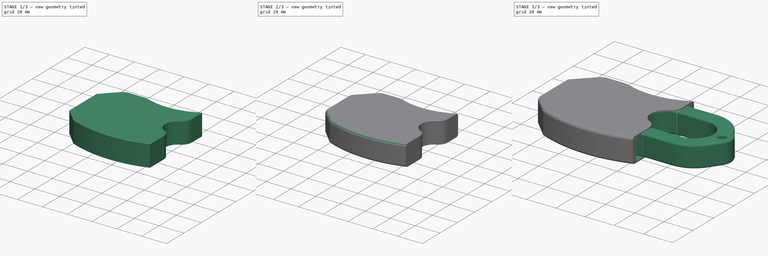
[diagram: build sequence overview — one tinted view per stage of 3, left to right]
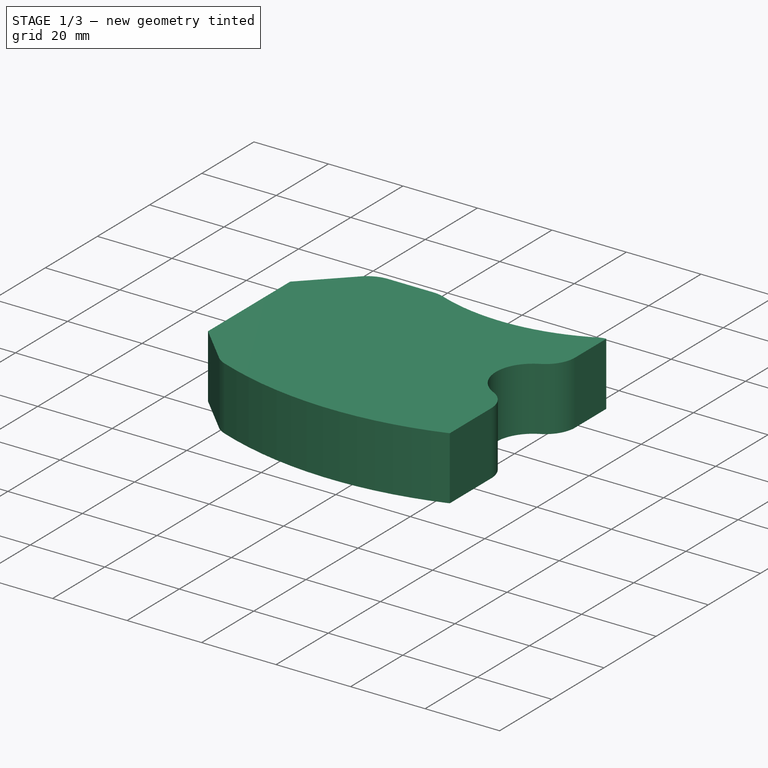
[diagram: stage 1 of 3 — iso view after this stage's code; geometry added in this stage tinted green]
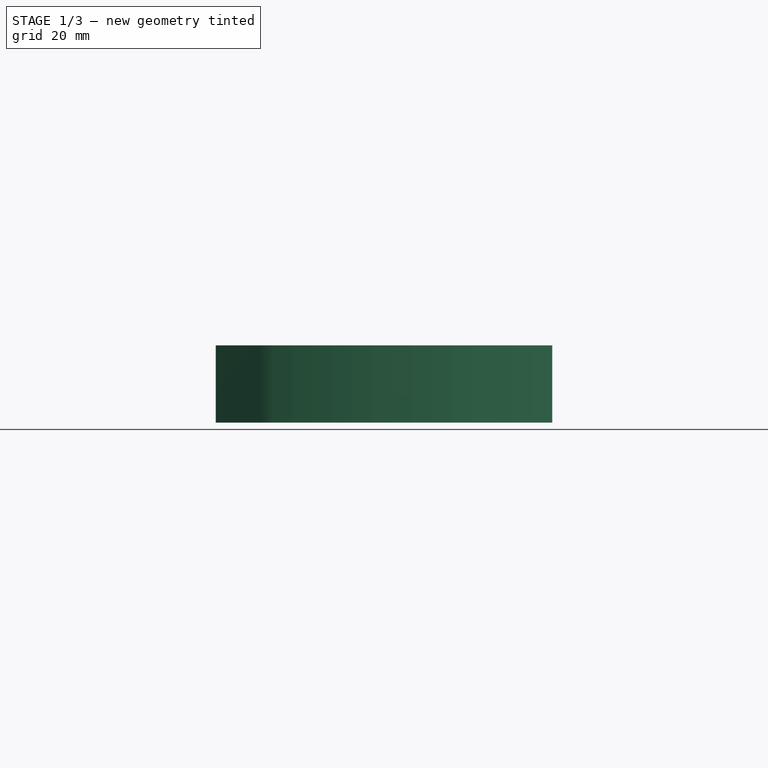
[diagram: stage 1 of 3 — front view after this stage's code; geometry added in this stage tinted green]
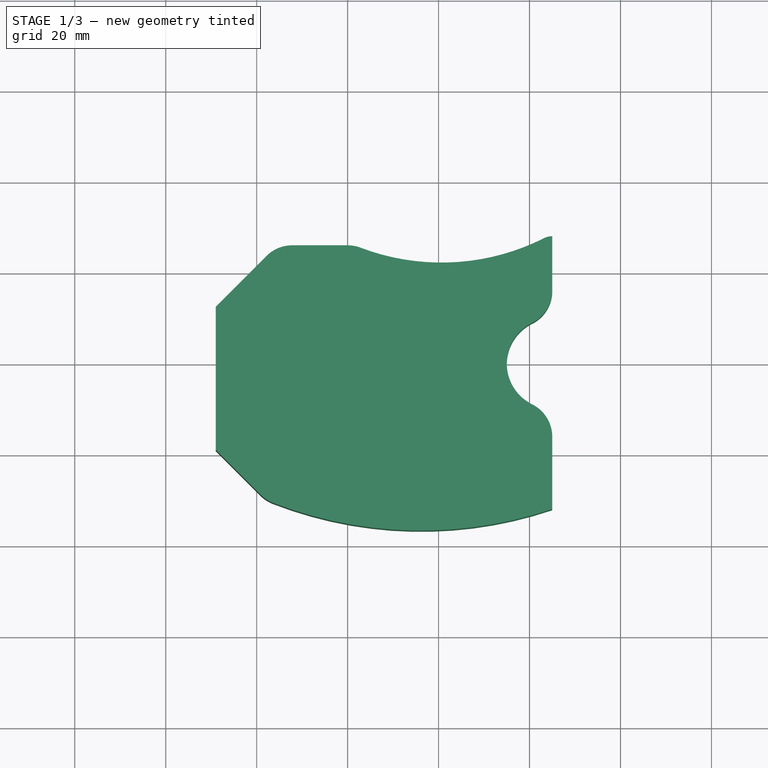
[diagram: stage 1 of 3 — top view after this stage's code; geometry added in this stage tinted green]
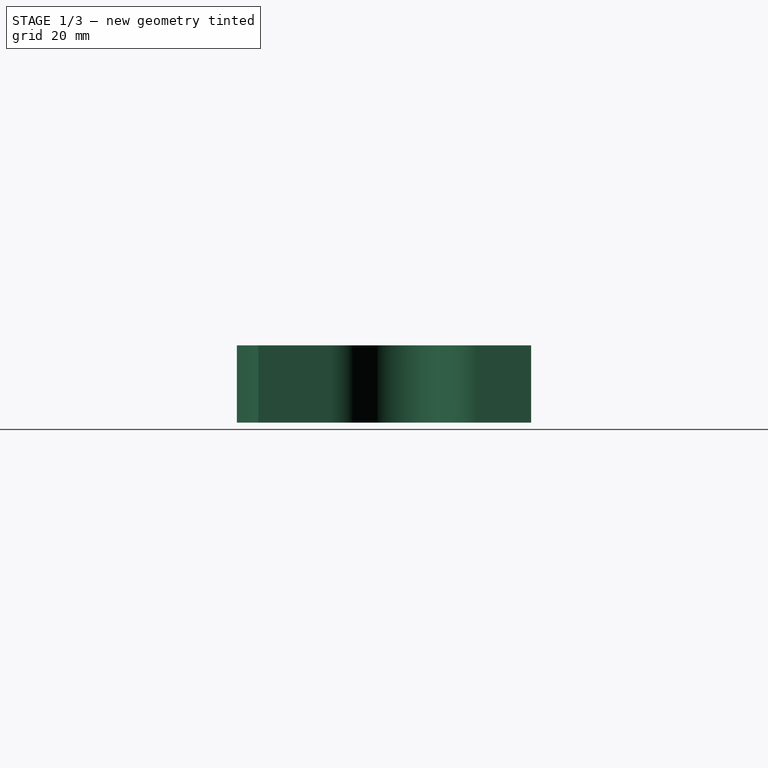
[diagram: stage 1 of 3 — right view after this stage's code; geometry added in this stage tinted green]
FCSTD DOCUMENT  (FreeCAD 0.18R16146 (Git))
Label: Holster
License: All rights reserved
LicenseURL: http://en.wikipedia.org/wiki/All_rights_reserved
objects: Sketcher::SketchObject×2, PartDesign::Fillet×2, Spreadsheet::Sheet×1, Part::FeaturePython×1, App::DocumentObjectGroup×1, PartDesign::Pad×1, PartDesign::Pocket×1, PartDesign::Body×1, App::Part×1
note: 10 computed .brp shape members not serialized (recipe doc carries the construction recipe); baked Part::Feature solids carry a one-line shape summary decoded from their .brp

FEATURE [App::DocumentObjectGroup] Group  label="References"
  Group = -> [b_Hook_001_]
FEATURE [Sketcher::SketchObject] Sketch  label="InnerCavity"
  MapMode = 5
  Support = -> [XY_Plane001]
  sketch-geometry (21):
    g0: ArcOfCircle CenterX=0 CenterY=0 CenterZ=0 NormalX=0 NormalY=0 NormalZ=1 AngleXU=0 Radius=27.5 StartAngle=2.10393 EndAngle=3.59911
    g1: ArcOfCircle CenterX=-10.8 CenterY=18.3009 CenterZ=0 NormalX=0 NormalY=0 NormalZ=1 AngleXU=0 Radius=6.25 StartAngle=0.923043 EndAngle=2.10393
    g2: LineSegment StartX=-25.0517 StartY=-14.4451 StartZ=0 EndX=-26.1124 EndY=-15.5058 EndZ=0
    g3: LineSegment StartX=-26.1124 StartY=-18.3342 StartZ=0 EndX=-18.3342 EndY=-26.1124 EndZ=0
    g4: ArcOfCircle CenterX=-26.4659 CenterY=-13.0309 CenterZ=0 NormalX=0 NormalY=0 NormalZ=1 AngleXU=0 Radius=2 StartAngle=5.49779 EndAngle=6.74071
    g5: ArcOfCircle CenterX=-24.6982 CenterY=-16.92 CenterZ=0 NormalX=0 NormalY=0 NormalZ=1 AngleXU=0 Radius=2 StartAngle=2.35619 EndAngle=3.92699
    g6: ArcOfCircle CenterX=-16.92 CenterY=-24.6982 CenterZ=0 NormalX=0 NormalY=0 NormalZ=1 AngleXU=0 Radius=2 StartAngle=3.92699 EndAngle=4.9194
    g7: LineSegment [constr] StartX=-22.2233 StartY=-22.2233 StartZ=0 EndX=0 EndY=0 EndZ=0
    g8: ArcOfCircle CenterX=16.8536 CenterY=78.3956 CenterZ=0 NormalX=0 NormalY=0 NormalZ=1 AngleXU=0 Radius=59.902 StartAngle=4.43808 EndAngle=5.29876
    g9: ArcOfCircle CenterX=16.8536 CenterY=78.3956 CenterZ=0 NormalX=0 NormalY=0 NormalZ=1 AngleXU=0 Radius=110.485 StartAngle=4.47138 EndAngle=5.01709
    g10: ArcOfCircle CenterX=-15.8923 CenterY=-29.5914 CenterZ=0 NormalX=0 NormalY=0 NormalZ=1 AngleXU=0 Radius=3 StartAngle=1.06475 EndAngle=1.77781
    g11: LineSegment [constr] StartX=-17.5426 StartY=-26.5988 StartZ=0 EndX=-8.03958 EndY=-29.712 EndZ=0
    g12: LineSegment [constr] StartX=-16.5089 StartY=-26.6555 StartZ=0 EndX=-6.72242 EndY=-24.6001 EndZ=0
    g13: ArcOfCircle CenterX=-4.74357 CenterY=-9.4741 CenterZ=0 NormalX=0 NormalY=0 NormalZ=1 AngleXU=0 Radius=20 StartAngle=4.20634 EndAngle=4.47138
    g14: LineSegment [constr] StartX=-14.4381 StartY=-26.9674 StartZ=0 EndX=-23.2562 EndY=-22.2513 EndZ=0
    g15: ArcOfCircle CenterX=-0.39142 CenterY=32.0568 CenterZ=0 NormalX=0 NormalY=0 NormalZ=1 AngleXU=0 Radius=11 StartAngle=4.06464 EndAngle=4.62314
    g16: LineSegment [constr] StartX=-7.02878 StartY=23.2849 StartZ=0 EndX=0.945642 EndY=17.2509 EndZ=0
    g17: LineSegment [constr] StartX=-6.25163 StartY=22.5875 StartZ=0 EndX=3.40248 EndY=19.9802 EndZ=0
    g18: LineSegment [constr] StartX=-1.37184 StartY=21.1005 StartZ=0 EndX=-11.332 EndY=21.9918 EndZ=0
    g19: ArcOfCircle CenterX=-2.35226 CenterY=10.1443 CenterZ=0 NormalX=0 NormalY=0 NormalZ=1 AngleXU=0 Radius=11 StartAngle=1.29649 EndAngle=1.48155
    g20: LineSegment StartX=50 StartY=28.5 StartZ=0 EndX=50 EndY=-27 EndZ=0
  constraints (58):
    c: Coincident(g0,g-1)
    c: Radius(g0) = 27.5
    c: Radius(g1) = 6.25
    c: Tangent(g0,g1) = -1.5708
    c: DistanceX(g1) = -10.8
    c: Tangent(g0,g4) = 1.5708
    c: Tangent(g2,g4) = 1.5708
    c: Tangent(g2,g5) = -1.5708
    c: Tangent(g3,g5) = -1.5708
    c: Tangent(g3,g6) = -1.5708
    c: Perpendicular(g3,g2)
    c: Radius(g5) = 2
    c: Equal(g5,g6)
    c: Angle(g2) = -2.35619
    c: Radius(g4) = 2
    c: Distance(g2) = 1.5
    c: Coincident(g0,g7)
    c: PointOnObject(g7,g3)
    c: Symmetric(g5,g6,g7)
    c: Distance(g5,g6) = 11
    c: Coincident(g8,g9)
    c: Tangent(g8,g1)
    c: Tangent(g9,g6)
    c: Tangent(g6,g10) = 1.5708
    c: Distance(g11) = 10
    c: Tangent(g11,g6)
    c: Tangent(g12,g6) = -1.5708
    c: Distance(g12) = 10
    c: Tangent(g10,g13) = 1.5708
    c: Tangent(g9,g13) = -1.5708
    c: Coincident(g14,g10)
    c: Distance(g14) = 10
    c: Angle(g11,g12) = 0.523599
    c: Angle(g14,g11) = 0.174533
    c: Tangent(g1,g15) = 1.5708
    c: Tangent(g17,g8)
    c: Distance(g17) = 10
    c: Tangent(g16,g1) = 1.5708
    c: Distance(g16) = 10
    c: PointOnObject(g17,g1)
    c: Tangent(g15,g19) = 1.5708
    c: Tangent(g8,g19) = 1.5708
    c: Distance(g18) = 10
    c: Angle(g16,g17) = 0.383972
    c: Tangent(g18,g15) = 1.5708
    c: Angle(g17,g18) = 0.174533
    c: Vertical(g20)
    c: Coincident(g8,g20)
    c: Coincident(g9,g20)
    c: DistanceX(g8) = 50
    c: DistanceY(g8) = 28.5
    c: DistanceY(g9) = -27
    c: PointOnObject(g11,g6)
    c: Radius(g13) = 20
    c: Tangent(g11,g9)
    c: Radius(g10) = 3
    c: Equal(g15,g19)
    c: Radius(g15) = 11
FEATURE [Sketcher::SketchObject] Sketch001  label="Base"
  MapMode = 5
  Support = -> [XY_Plane001]
  sketch-geometry (11):
    g0: LineSegment StartX=-29 StartY=12.5 StartZ=0 EndX=-29 EndY=-19 EndZ=0
    g1: LineSegment StartX=-29 StartY=-19 StartZ=0 EndX=-18 EndY=-30 EndZ=0
    g2: LineSegment StartX=0 StartY=26 StartZ=0 EndX=-15.5 EndY=26 EndZ=0
    g3: LineSegment StartX=-15.5 StartY=26 StartZ=0 EndX=-29 EndY=12.5 EndZ=0
    g4: ArcOfCircle CenterX=45 CenterY=0 CenterZ=0 NormalX=0 NormalY=0 NormalZ=1 AngleXU=0 Radius=10 StartAngle=1.5708 EndAngle=4.71239
    g5: LineSegment StartX=45 StartY=28 StartZ=0 EndX=45 EndY=10 EndZ=0
    g6: LineSegment StartX=45 StartY=-10 StartZ=0 EndX=45 EndY=-32 EndZ=0
    g7: ArcOfCircle CenterX=0 CenterY=18 CenterZ=0 NormalX=0 NormalY=0 NormalZ=1 AngleXU=0 Radius=8 StartAngle=1.20675 EndAngle=1.5708
    g8: ArcOfCircle CenterX=20.6513 CenterY=72.1989 CenterZ=0 NormalX=0 NormalY=0 NormalZ=1 AngleXU=0 Radius=50 StartAngle=4.34835 EndAngle=5.18017
    g9: ArcOfCircle CenterX=45 CenterY=24 CenterZ=0 NormalX=0 NormalY=0 NormalZ=1 AngleXU=0 Radius=4 StartAngle=1.5708 EndAngle=2.03857
    g10: ArcOfCircle CenterX=16.1749 CenterY=53.2591 CenterZ=0 NormalX=0 NormalY=0 NormalZ=1 AngleXU=0 Radius=90 StartAngle=4.32289 EndAngle=5.03841
  constraints (35):
    c: Vertical(g0)
    c: Coincident(g0,g1)
    c: Coincident(g2,g3)
    c: Coincident(g0,g3)
    c: Perpendicular(g1,g3)
    c: Angle(g1,g0) = 2.35619
    c: DistanceX(g1) = -29
    c: DistanceX(g1,g1) = 11
    c: DistanceX(g3,g3) = 13.5
    c: Vertical(g5)
    c: Vertical(g6)
    c: Coincident(g4,g6)
    c: Coincident(g4,g5)
    c: PointOnObject(g4,g5)
    c: PointOnObject(g4,g6)
    c: PointOnObject(g4,g-1)
    c: Radius(g4) = 10
    c: DistanceY(g2) = 26
    c: DistanceY(g6) = -32
    c: DistanceY(g1) = -30
    c: DistanceY(g5) = 28
    c: DistanceX(g5) = 45
    c: Tangent(g2,g7) = -1.5708
    c: Tangent(g7,g8) = 1.5708
    c: PointOnObject(g2,g-2)
    c: Coincident(g5,g9)
    c: PointOnObject(g9,g5)
    c: Tangent(g8,g9) = 1.5708
    c: Radius(g7) = 8
    c: Radius(g8) = 50
    c: Radius(g9) = 4
    c: Coincident(g1,g10)
    c: Coincident(g6,g10)
    c: Radius(g10) = 90
    c: Horizontal(g2)
FEATURE [PartDesign::Pad] Pad  label="Base001"
  Length = 16
  Length2 = 1
  Profile = -> Sketch001
  Type = 4
  expr: Length = 15 + pars.WallTh
  expr: Length2 = pars.WallTh
FEATURE [PartDesign::Fillet] Fillet  label="ExteriorFillet"
  Base = -> Pad [Edge20,Edge23,Edge14,Edge5]
  BaseFeature = -> Pad
  Radius = 8
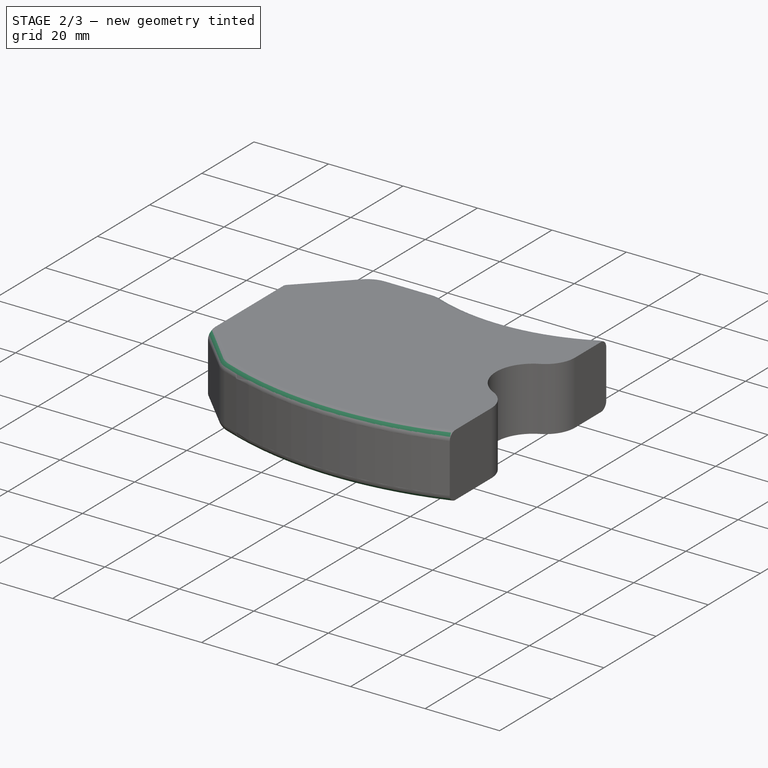
[diagram: stage 2 of 3 — iso view after this stage's code; geometry added in this stage tinted green]
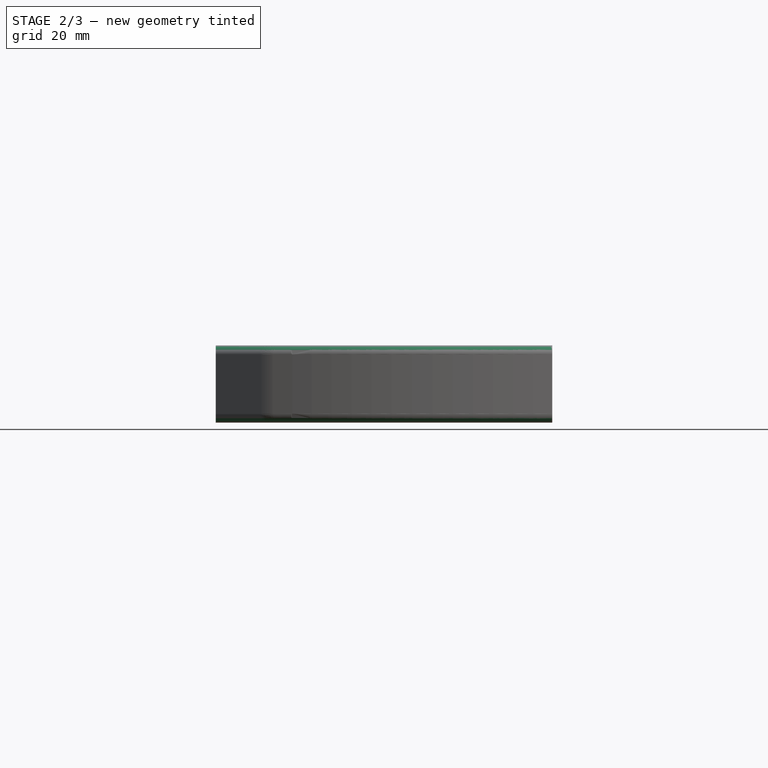
[diagram: stage 2 of 3 — front view after this stage's code; geometry added in this stage tinted green]
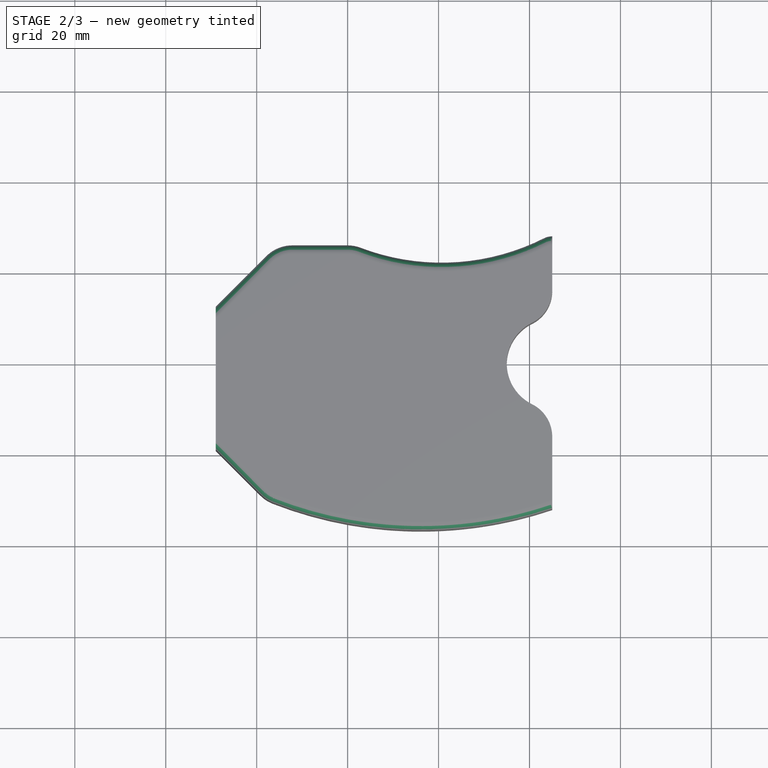
[diagram: stage 2 of 3 — top view after this stage's code; geometry added in this stage tinted green]
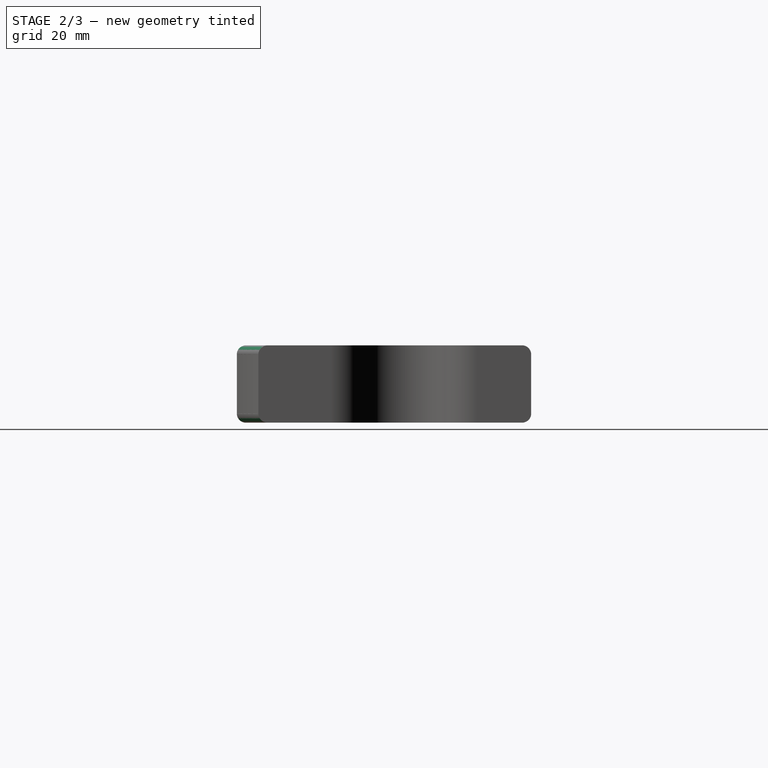
[diagram: stage 2 of 3 — right view after this stage's code; geometry added in this stage tinted green]
FEATURE [PartDesign::Fillet] Fillet001  label="SideFillet"
  Base = -> Fillet [Edge23,Edge7,Edge27,Edge11]
  BaseFeature = -> Fillet
  Radius = 2
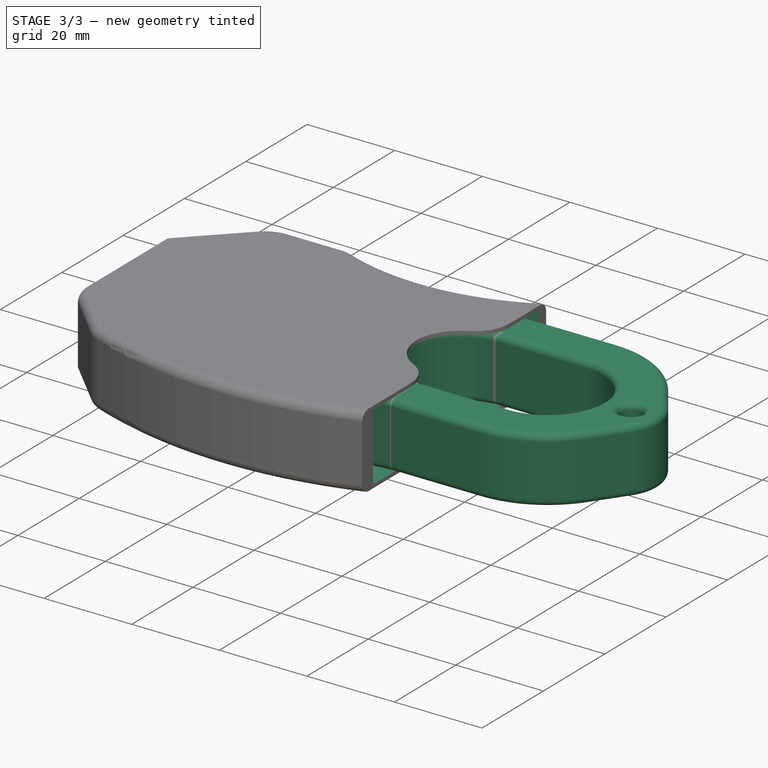
[diagram: stage 3 of 3 — iso view after this stage's code; geometry added in this stage tinted green]
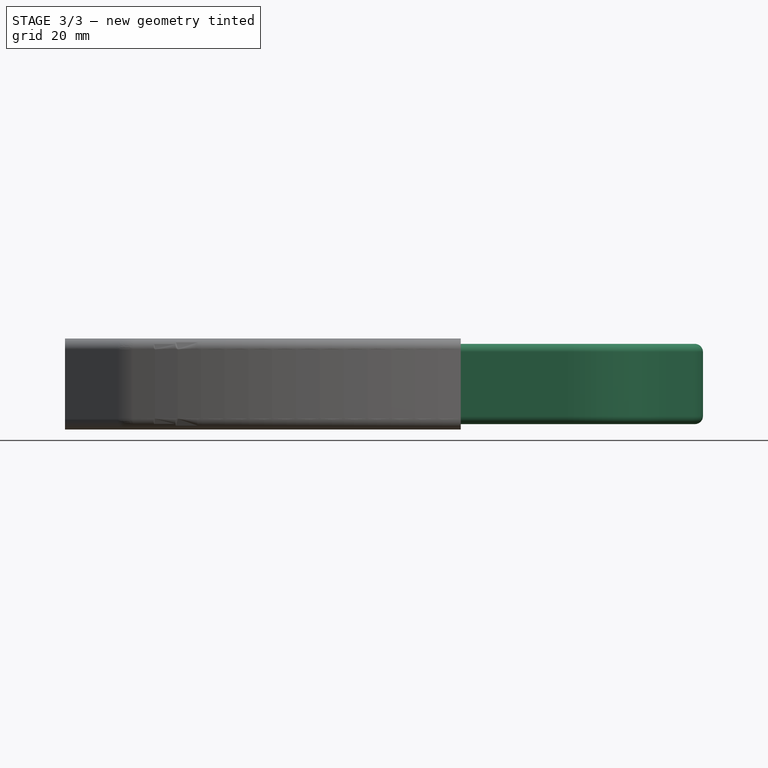
[diagram: stage 3 of 3 — front view after this stage's code; geometry added in this stage tinted green]
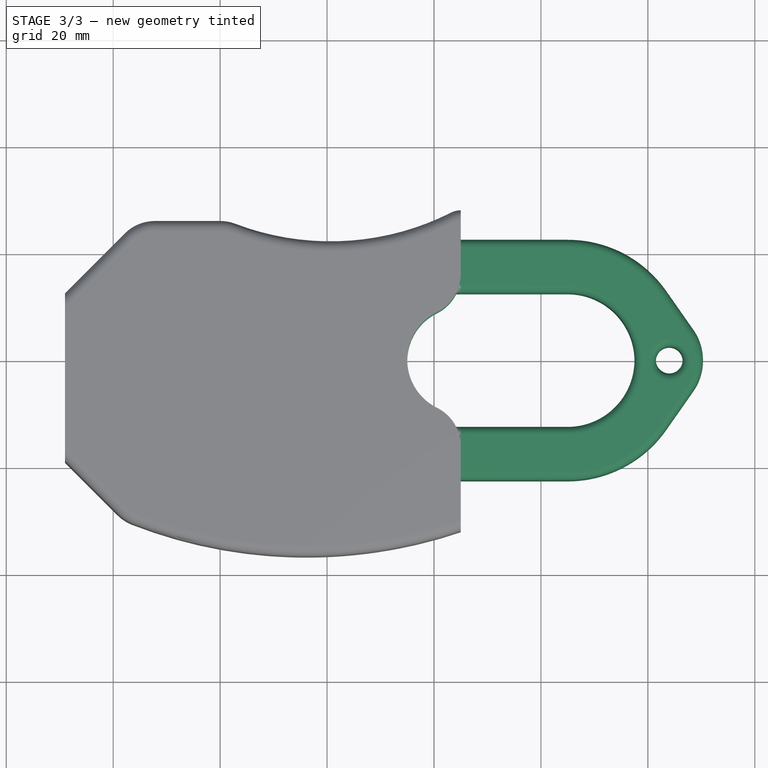
[diagram: stage 3 of 3 — top view after this stage's code; geometry added in this stage tinted green]
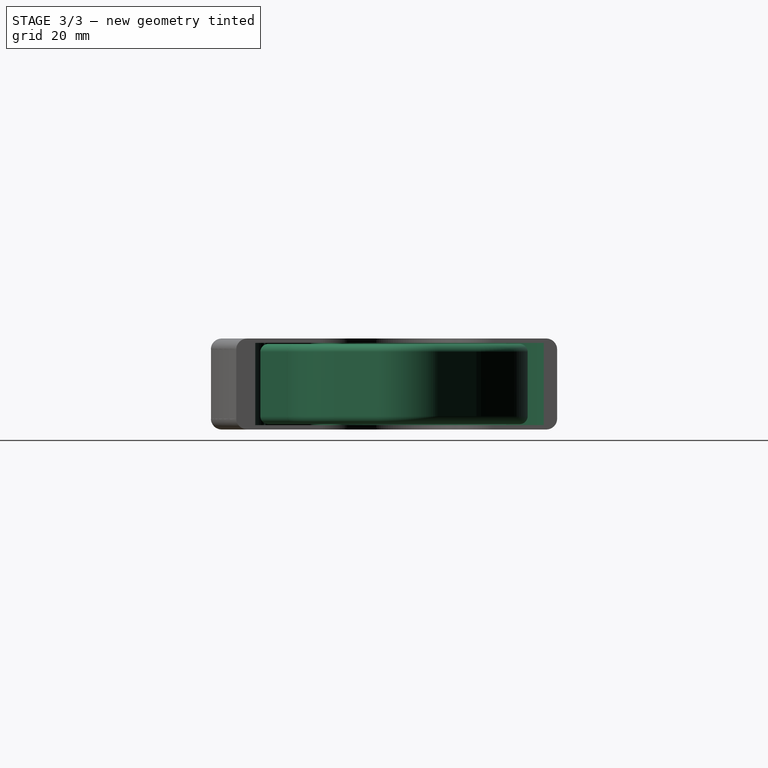
[diagram: stage 3 of 3 — right view after this stage's code; geometry added in this stage tinted green]
FEATURE [Spreadsheet::Sheet] Spreadsheet  label="pars"
  cells = A1=Bolts and Nuts; B1=Value; D1=Components; E1=Value; A2=Thread Tight Tolerance (Radius, ratio); B2(ThrTighRatio)=0.96; D2=Tight Cilinder Tolerances (Radius, mm); E2(CilTight)=0.1; A3=Thread Tight Tolerance (Radius, mm); B3(ThrTightmm)=0.1; D3=Loose Cilinder Tolerances (Radius, mm); E3(CilLoose)=0.1; A5=Nut Slot Width Clearance (mm); B5(NutWidthClearmm)=0.1; A6=Nut Slot Thickess Clearance (mm); B6(NutThickClearmm)=0.1; A13=Particular parameters; B13=Value; A14=Wall Thickness; B14(WallTh)=1; A15=Side clearance; B15(SideClear)=0.2
FEATURE [Part::FeaturePython] b_Hook_001_  label="Hook_Body_001"  # a2plus imported part (geometry in sourceFile) (typed FeaturePython)
  Placement = pos=(45,0,0) rot=(0,0,1;0rad)
  a2p_Version = V0.1
  fixedPosition = true
  objectType = a2pPart
  sourceFile = ./Hook.FCStd
  sourcePart = Body
  subassemblyImport = false
  timeLastImport = 1.61334e+09
  updateColors = true
FEATURE [PartDesign::Pocket] Pocket  label="InnerSpace"
  BaseFeature = -> Fillet001
  Length = 0.2
  Length2 = 15.2
  Profile = -> Sketch
  Type = 4
  expr: Length = pars.SideClear
  expr: Length2 = pars.SideClear + 15
FEATURE [PartDesign::Body] Body
  Group = -> [Sketch,Sketch001,Pad,Fillet,Fillet001,Pocket]
  Origin = -> Origin001
  Tip = -> Pocket
FEATURE [App::Part] Part  label="Holster"
  Group = -> [Body]
  Origin = -> Origin
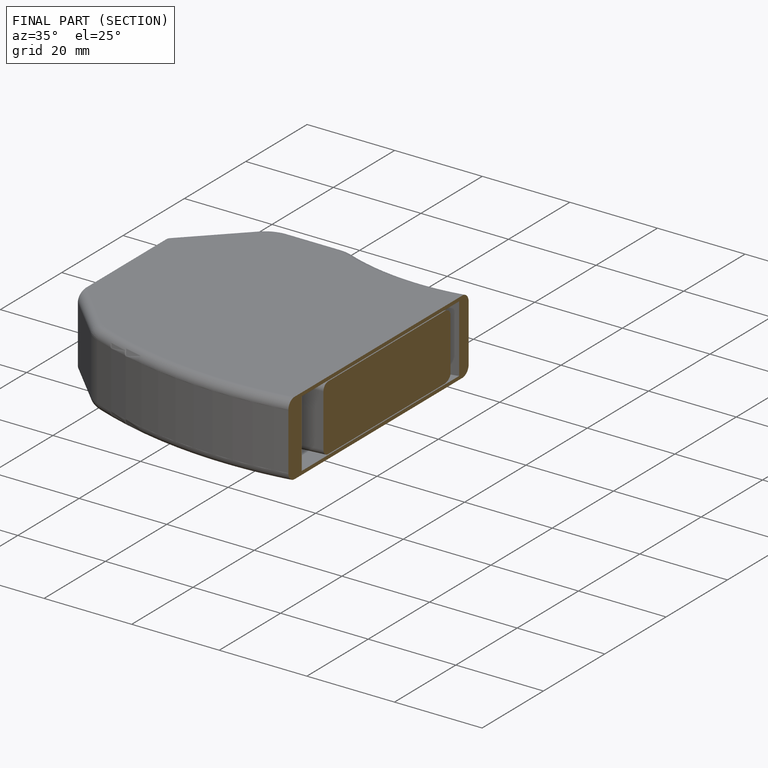
[diagram: finished part — half-section view (interior)]
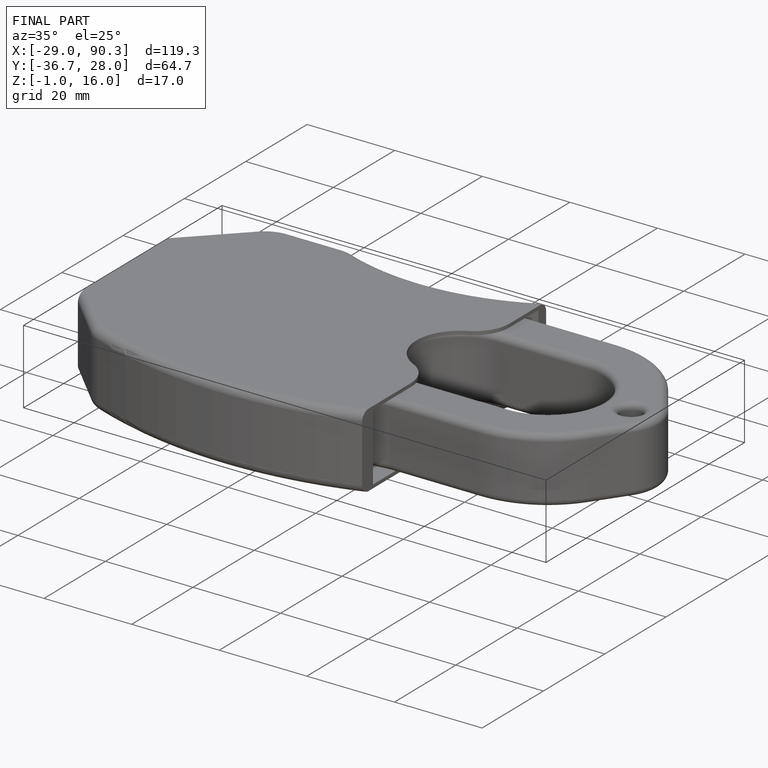
[diagram: finished part — iso view with bounding-box wireframe]
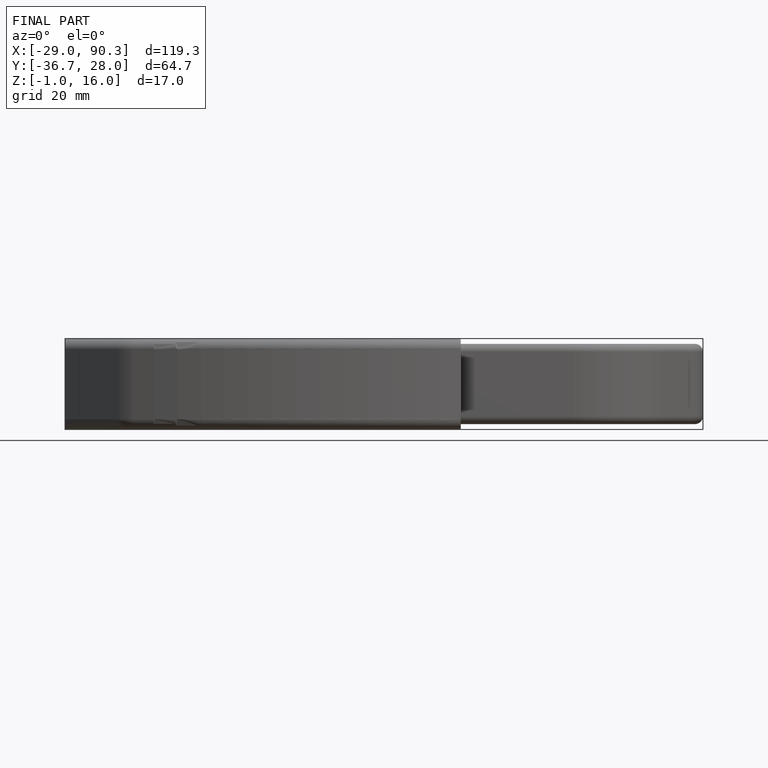
[diagram: finished part — front view with bounding-box wireframe]
